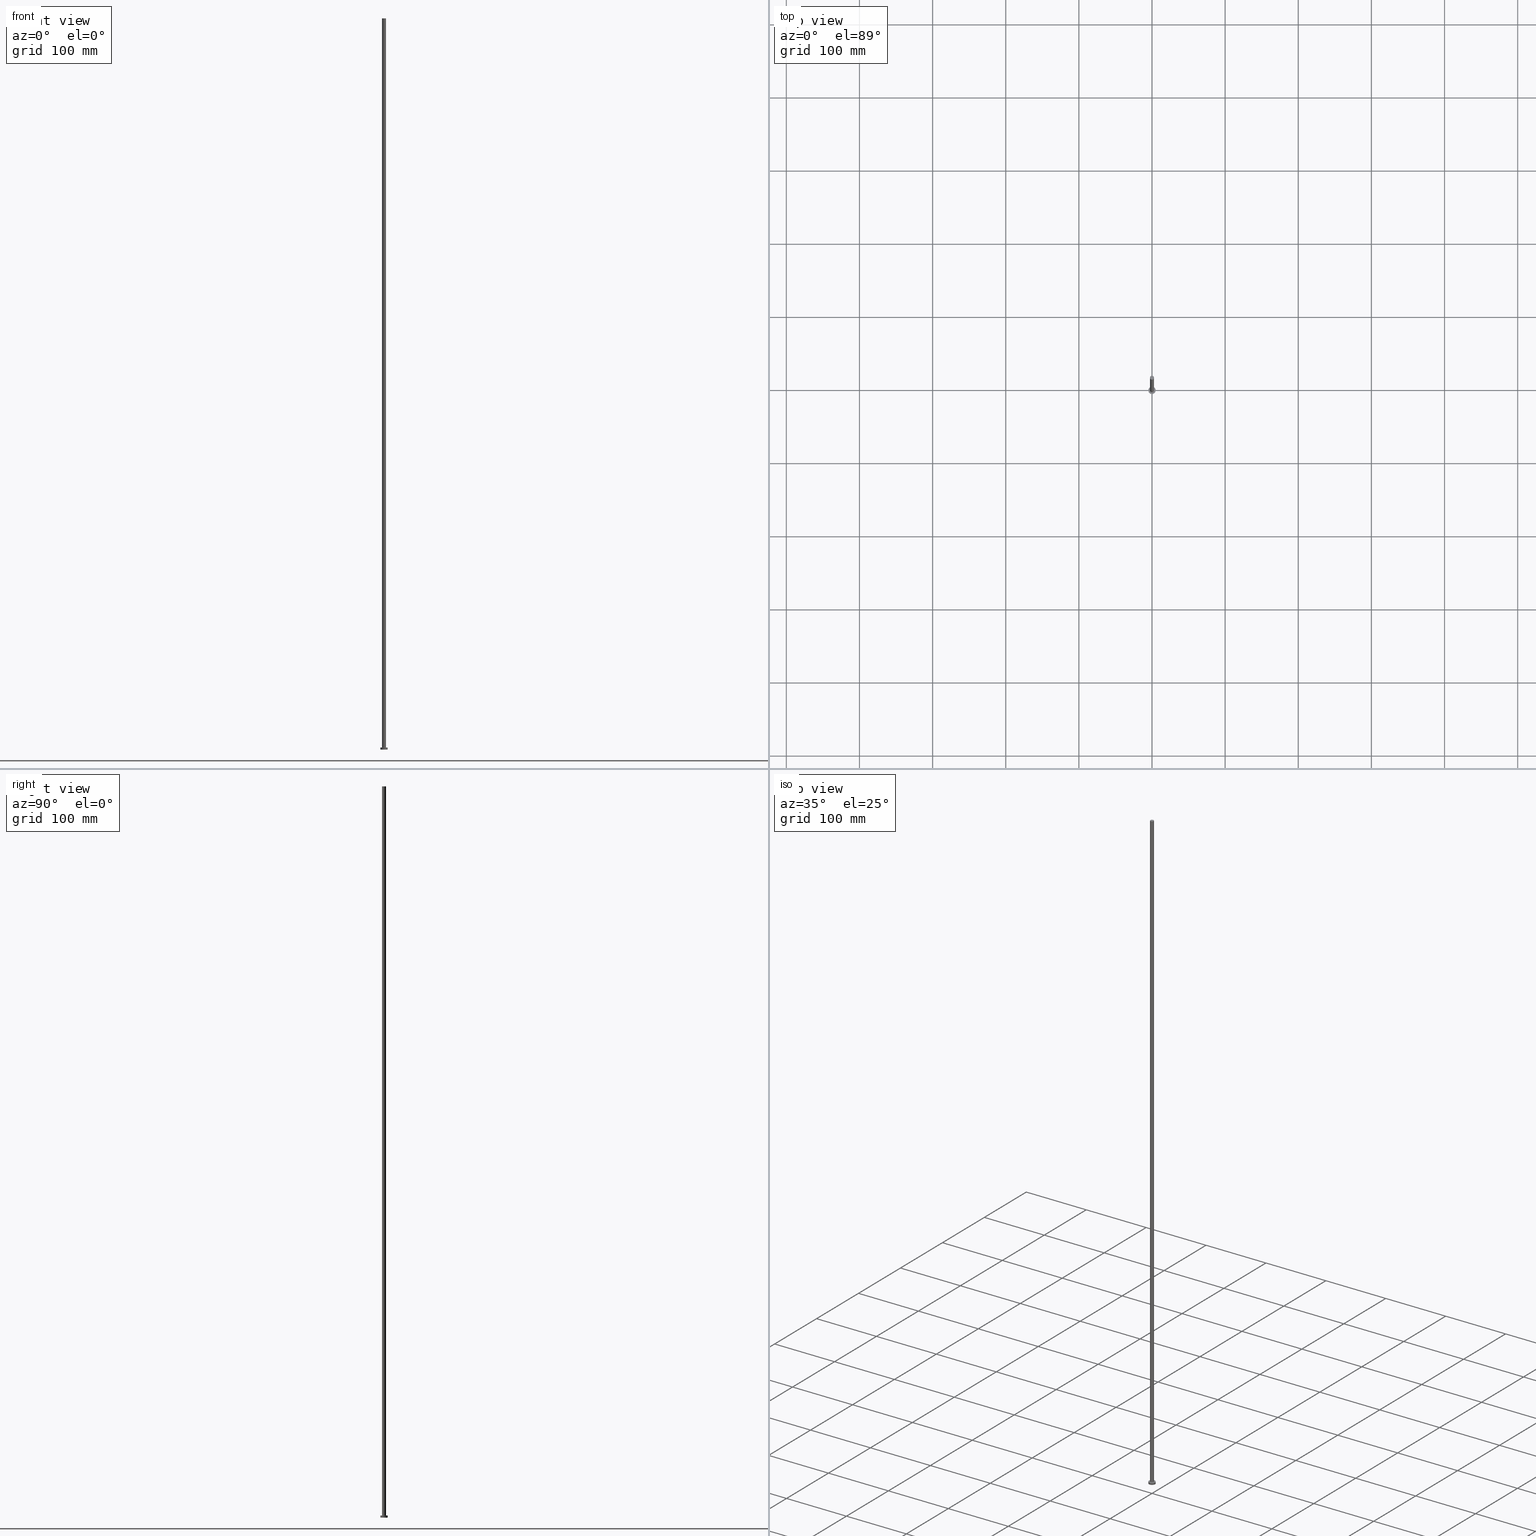
[diagram: canonical four-view strip — front | top / right | iso, engineering-drawing reading convention]
A machine part, canonical four-view strip (front | top / right | iso — engineering-drawing reading convention). The complete STEP part file that produces these views, byte-faithful:
ISO-10303-21;
HEADER;
FILE_DESCRIPTION (( 'STEP AP203' ),
    '1' );
FILE_NAME ('c2dc.STEP',
    '2023-02-12T12:20:07',
    ( '' ),
    ( '' ),
    'SwSTEP 2.0',
    'SolidWorks 2019',
    '' );
FILE_SCHEMA (( 'CONFIG_CONTROL_DESIGN' ));
ENDSEC;

DATA;
#1 = ORIENTED_EDGE ( 'NONE', *, *, #4, .F. ) ;
#2 = PERSON_AND_ORGANIZATION_ROLE ( 'design_supplier' ) ;
#3 = ORIENTED_EDGE ( 'NONE', *, *, #4, .T. ) ;
#4 = EDGE_CURVE ( 'NONE', #95, #244, #157, .T. ) ;
#5 = AXIS2_PLACEMENT_3D ( 'NONE', #247, #135, #111 ) ;
#6 = CARTESIAN_POINT ( 'NONE',  ( 0.000000000000000000, 0.000000000000000000, 1000.000000000000000 ) ) ;
#7 = DATE_AND_TIME ( #202, #87 ) ;
#8 = FACE_OUTER_BOUND ( 'NONE', #201, .T. ) ;
#9 = APPROVAL_STATUS ( 'not_yet_approved' ) ;
#10 = DIRECTION ( 'NONE',  ( -0.000000000000000000, -0.000000000000000000, -1.000000000000000000 ) ) ;
#11 = DIRECTION ( 'NONE',  ( -1.000000000000000000, 0.000000000000000000, 0.000000000000000000 ) ) ;
#12 = EDGE_LOOP ( 'NONE', ( #36, #112, #88, #170 ) ) ;
#13 = AXIS2_PLACEMENT_3D ( 'NONE', #89, #241, #224 ) ;
#14 = CARTESIAN_POINT ( 'NONE',  ( -2.750000000000000000, 0.000000000000000000, 3.000000000000000000 ) ) ;
#15 = CARTESIAN_POINT ( 'NONE',  ( -2.750000000000000000, 0.000000000000000000, 1000.000000000000000 ) ) ;
#16 = APPROVAL_DATE_TIME ( #7, #24 ) ;
#17 = ORIENTED_EDGE ( 'NONE', *, *, #253, .T. ) ;
#18 = PERSON_AND_ORGANIZATION ( #86, #183 ) ;
#19 = DIRECTION ( 'NONE',  ( -0.000000000000000000, -0.000000000000000000, -1.000000000000000000 ) ) ;
#20 = CLOSED_SHELL ( 'NONE', ( #188, #203, #47, #162, #43, #66, #238 ) ) ;
#21 = CIRCLE ( 'NONE', #126, 5.000000000000000000 ) ;
#22 = APPLICATION_PROTOCOL_DEFINITION ( 'international standard', 'config_control_design', 1994, #230 ) ;
#23 = EDGE_CURVE ( 'NONE', #244, #213, #85, .T. ) ;
#24 = APPROVAL ( #120, 'NEUR�EN�' ) ;
#25 = AXIS2_PLACEMENT_3D ( 'NONE', #215, #10, #192 ) ;
#26 = LOCAL_TIME ( 13, 20, 7.000000000000000000, #34 ) ;
#27 = UNCERTAINTY_MEASURE_WITH_UNIT (LENGTH_MEASURE( 1.000000000000000082E-05 ), #234, 'distance_accuracy_value', 'NONE');
#28 = AXIS2_PLACEMENT_3D ( 'NONE', #128, #33, #71 ) ;
#29 = AXIS2_PLACEMENT_3D ( 'NONE', #6, #69, #166 ) ;
#30 = DIRECTION ( 'NONE',  ( 0.000000000000000000, 0.000000000000000000, 1.000000000000000000 ) ) ;
#31 = EDGE_CURVE ( 'NONE', #74, #32, #94, .T. ) ;
#32 = VERTEX_POINT ( 'NONE', #233 ) ;
#33 = DIRECTION ( 'NONE',  ( 0.000000000000000000, 0.000000000000000000, 1.000000000000000000 ) ) ;
#34 = COORDINATED_UNIVERSAL_TIME_OFFSET ( 1, 0, .AHEAD. ) ;
#35 = CARTESIAN_POINT ( 'NONE',  ( -5.000000000000000000, 0.000000000000000000, 3.000000000000000000 ) ) ;
#36 = ORIENTED_EDGE ( 'NONE', *, *, #164, .F. ) ;
#37 = DIRECTION ( 'NONE',  ( -0.000000000000000000, -0.000000000000000000, -1.000000000000000000 ) ) ;
#38 = CALENDAR_DATE ( 2023, 12, 2 ) ;
#39 = CARTESIAN_POINT ( 'NONE',  ( 0.000000000000000000, 0.000000000000000000, 0.000000000000000000 ) ) ;
#40 = AXIS2_PLACEMENT_3D ( 'NONE', #255, #216, #229 ) ;
#41 = FACE_OUTER_BOUND ( 'NONE', #146, .T. ) ;
#42 = FACE_OUTER_BOUND ( 'NONE', #12, .T. ) ;
#43 = ADVANCED_FACE ( 'NONE', ( #41 ), #217, .F. ) ;
#44 = AXIS2_PLACEMENT_3D ( 'NONE', #211, #130, #154 ) ;
#45 = PRODUCT ( 'c2dc', 'c2dc', '', ( #57 ) ) ;
#46 = PRODUCT_RELATED_PRODUCT_CATEGORY ( 'detail', '', ( #45 ) ) ;
#47 = ADVANCED_FACE ( 'NONE', ( #42 ), #235, .T. ) ;
#48 = SECURITY_CLASSIFICATION ( '', '', #81 ) ;
#49 = APPROVAL ( #118, 'NEUR�EN�' ) ;
#50 = CARTESIAN_POINT ( 'NONE',  ( -5.000000000000000000, 0.000000000000000000, 3.000000000000000000 ) ) ;
#51 = EDGE_LOOP ( 'NONE', ( #1, #240, #134, #161 ) ) ;
#52 = PLANE ( 'NONE',  #28 ) ;
#53 = EDGE_LOOP ( 'NONE', ( #156, #115 ) ) ;
#54 = COORDINATED_UNIVERSAL_TIME_OFFSET ( 1, 0, .AHEAD. ) ;
#55 = FACE_BOUND ( 'NONE', #174, .T. ) ;
#56 = VERTEX_POINT ( 'NONE', #15 ) ;
#57 = MECHANICAL_CONTEXT ( 'NONE', #138, 'mechanical' ) ;
#58 = DIRECTION ( 'NONE',  ( -0.000000000000000000, -0.000000000000000000, -1.000000000000000000 ) ) ;
#59 = APPROVAL_PERSON_ORGANIZATION ( #189, #24, #200 ) ;
#60 = DATE_AND_TIME ( #198, #163 ) ;
#61 = CARTESIAN_POINT ( 'NONE',  ( 0.000000000000000000, 0.000000000000000000, 3.000000000000000000 ) ) ;
#62 = APPROVAL ( #9, 'NEUR�EN�' ) ;
#63 = EDGE_CURVE ( 'NONE', #196, #97, #237, .T. ) ;
#64 = VECTOR ( 'NONE', #133, 1000.000000000000000 ) ;
#65 = ADVANCED_BREP_SHAPE_REPRESENTATION ( 'c2dc', ( #252, #40 ), #83 ) ;
#66 = ADVANCED_FACE ( 'NONE', ( #121 ), #73, .T. ) ;
#67 = PRODUCT_DEFINITION ( 'NEZN�M�', '', #96, #84 ) ;
#68 = LINE ( 'NONE', #50, #64 ) ;
#69 = DIRECTION ( 'NONE',  ( 0.000000000000000000, 0.000000000000000000, 1.000000000000000000 ) ) ;
#70 = APPROVAL_DATE_TIME ( #242, #62 ) ;
#71 = DIRECTION ( 'NONE',  ( 1.000000000000000000, 0.000000000000000000, -0.000000000000000000 ) ) ;
#72 = AXIS2_PLACEMENT_3D ( 'NONE', #39, #204, #119 ) ;
#73 = CYLINDRICAL_SURFACE ( 'NONE', #123, 2.750000000000000000 ) ;
#74 = VERTEX_POINT ( 'NONE', #151 ) ;
#75 = DIRECTION ( 'NONE',  ( -0.000000000000000000, -0.000000000000000000, -1.000000000000000000 ) ) ;
#76 = APPROVAL_ROLE ( '' ) ;
#77 =( NAMED_UNIT ( * ) PLANE_ANGLE_UNIT ( ) SI_UNIT ( $, .RADIAN. ) );
#78 = ORIENTED_EDGE ( 'NONE', *, *, #187, .F. ) ;
#79 = PERSON_AND_ORGANIZATION ( #86, #183 ) ;
#80 = ORIENTED_EDGE ( 'NONE', *, *, #209, .F. ) ;
#81 = SECURITY_CLASSIFICATION_LEVEL ( 'unclassified' ) ;
#82 = ORIENTED_EDGE ( 'NONE', *, *, #149, .F. ) ;
#83 =( GEOMETRIC_REPRESENTATION_CONTEXT ( 3 ) GLOBAL_UNCERTAINTY_ASSIGNED_CONTEXT ( ( #27 ) ) GLOBAL_UNIT_ASSIGNED_CONTEXT ( ( #234, #77, #219 ) ) REPRESENTATION_CONTEXT ( 'NONE', 'WORKASPACE' ) );
#84 = DESIGN_CONTEXT ( 'detailed design', #230, 'design' ) ;
#85 = CIRCLE ( 'NONE', #185, 2.750000000000000000 ) ;
#86 = PERSON ( 'NEUR�EN�', 'NEUR�EN�', 'NEUR�EN�', ('NEUR�EN�'), ('NEUR�EN�'), ('NEUR�EN�') ) ;
#87 = LOCAL_TIME ( 13, 20, 7.000000000000000000, #160 ) ;
#88 = ORIENTED_EDGE ( 'NONE', *, *, #149, .T. ) ;
#89 = CARTESIAN_POINT ( 'NONE',  ( 0.000000000000000000, 0.000000000000000000, 1000.000000000000000 ) ) ;
#90 = PERSON_AND_ORGANIZATION ( #86, #183 ) ;
#91 = DIRECTION ( 'NONE',  ( -0.000000000000000000, -0.000000000000000000, -1.000000000000000000 ) ) ;
#92 = CARTESIAN_POINT ( 'NONE',  ( -2.750000000000000000, 0.000000000000000000, 1000.000000000000000 ) ) ;
#93 = COORDINATED_UNIVERSAL_TIME_OFFSET ( 1, 0, .AHEAD. ) ;
#94 = CIRCLE ( 'NONE', #172, 5.000000000000000000 ) ;
#95 = VERTEX_POINT ( 'NONE', #169 ) ;
#96 = PRODUCT_DEFINITION_FORMATION_WITH_SPECIFIED_SOURCE ( 'LIBOVOLN�', '', #45, .NOT_KNOWN. ) ;
#97 = VERTEX_POINT ( 'NONE', #171 ) ;
#98 = FACE_OUTER_BOUND ( 'NONE', #179, .T. ) ;
#99 = APPLICATION_PROTOCOL_DEFINITION ( 'international standard', 'config_control_design', 1994, #138 ) ;
#100 = DIRECTION ( 'NONE',  ( 0.000000000000000000, 0.000000000000000000, 1.000000000000000000 ) ) ;
#101 = CC_DESIGN_DATE_AND_TIME_ASSIGNMENT ( #158, #248, ( #67 ) ) ;
#102 = EDGE_LOOP ( 'NONE', ( #129, #3, #194, #80 ) ) ;
#103 = PERSON_AND_ORGANIZATION ( #86, #183 ) ;
#104 = CARTESIAN_POINT ( 'NONE',  ( 0.000000000000000000, 0.000000000000000000, 0.000000000000000000 ) ) ;
#105 = CC_DESIGN_PERSON_AND_ORGANIZATION_ASSIGNMENT ( #90, #116, ( #48 ) ) ;
#106 = CC_DESIGN_PERSON_AND_ORGANIZATION_ASSIGNMENT ( #79, #176, ( #45 ) ) ;
#107 = PRODUCT_DEFINITION_SHAPE ( 'NONE', 'NONE',  #67 ) ;
#108 = AXIS2_PLACEMENT_3D ( 'NONE', #145, #222, #113 ) ;
#109 = VECTOR ( 'NONE', #75, 1000.000000000000000 ) ;
#110 = CC_DESIGN_SECURITY_CLASSIFICATION ( #48, ( #96 ) ) ;
#111 = DIRECTION ( 'NONE',  ( 1.000000000000000000, 0.000000000000000000, 0.000000000000000000 ) ) ;
#112 = ORIENTED_EDGE ( 'NONE', *, *, #63, .F. ) ;
#113 = DIRECTION ( 'NONE',  ( 1.000000000000000000, 0.000000000000000000, 0.000000000000000000 ) ) ;
#114 = CYLINDRICAL_SURFACE ( 'NONE', #142, 5.000000000000000000 ) ;
#115 = ORIENTED_EDGE ( 'NONE', *, *, #143, .T. ) ;
#116 = PERSON_AND_ORGANIZATION_ROLE ( 'classification_officer' ) ;
#117 = FACE_OUTER_BOUND ( 'NONE', #102, .T. ) ;
#118 = APPROVAL_STATUS ( 'not_yet_approved' ) ;
#119 = DIRECTION ( 'NONE',  ( 1.000000000000000000, 0.000000000000000000, -0.000000000000000000 ) ) ;
#120 = APPROVAL_STATUS ( 'not_yet_approved' ) ;
#121 = FACE_OUTER_BOUND ( 'NONE', #51, .T. ) ;
#122 = DIRECTION ( 'NONE',  ( 0.000000000000000000, 0.000000000000000000, 1.000000000000000000 ) ) ;
#123 = AXIS2_PLACEMENT_3D ( 'NONE', #153, #228, #226 ) ;
#124 = EDGE_CURVE ( 'NONE', #95, #56, #125, .T. ) ;
#125 = CIRCLE ( 'NONE', #5, 2.750000000000000000 ) ;
#126 = AXIS2_PLACEMENT_3D ( 'NONE', #167, #30, #250 ) ;
#127 = CC_DESIGN_APPROVAL ( #49, ( #96 ) ) ;
#128 = CARTESIAN_POINT ( 'NONE',  ( 0.000000000000000000, 0.000000000000000000, 3.000000000000000000 ) ) ;
#129 = ORIENTED_EDGE ( 'NONE', *, *, #124, .F. ) ;
#130 = DIRECTION ( 'NONE',  ( 0.000000000000000000, 0.000000000000000000, 1.000000000000000000 ) ) ;
#131 = EDGE_CURVE ( 'NONE', #213, #244, #152, .T. ) ;
#132 = DATE_AND_TIME ( #214, #173 ) ;
#133 = DIRECTION ( 'NONE',  ( -0.000000000000000000, -0.000000000000000000, -1.000000000000000000 ) ) ;
#134 = ORIENTED_EDGE ( 'NONE', *, *, #209, .T. ) ;
#135 = DIRECTION ( 'NONE',  ( 0.000000000000000000, 0.000000000000000000, 1.000000000000000000 ) ) ;
#136 = DIRECTION ( 'NONE',  ( 1.000000000000000000, 0.000000000000000000, 0.000000000000000000 ) ) ;
#137 = DIRECTION ( 'NONE',  ( 1.000000000000000000, 0.000000000000000000, 0.000000000000000000 ) ) ;
#138 = APPLICATION_CONTEXT ( 'configuration controlled 3d designs of mechanical parts and assemblies' ) ;
#139 = PERSON_AND_ORGANIZATION_ROLE ( 'creator' ) ;
#140 = ORIENTED_EDGE ( 'NONE', *, *, #23, .F. ) ;
#141 = CC_DESIGN_DATE_AND_TIME_ASSIGNMENT ( #132, #191, ( #48 ) ) ;
#142 = AXIS2_PLACEMENT_3D ( 'NONE', #243, #37, #11 ) ;
#143 = EDGE_CURVE ( 'NONE', #97, #196, #221, .T. ) ;
#144 = APPROVAL_PERSON_ORGANIZATION ( #195, #62, #168 ) ;
#145 = CARTESIAN_POINT ( 'NONE',  ( 0.000000000000000000, 0.000000000000000000, 3.000000000000000000 ) ) ;
#146 = EDGE_LOOP ( 'NONE', ( #231, #78 ) ) ;
#147 = CC_DESIGN_PERSON_AND_ORGANIZATION_ASSIGNMENT ( #18, #232, ( #67 ) ) ;
#148 = CARTESIAN_POINT ( 'NONE',  ( 2.750000000000000000, 3.367778697655221012E-16, 3.000000000000000000 ) ) ;
#149 = EDGE_CURVE ( 'NONE', #196, #74, #68, .T. ) ;
#150 = SHAPE_DEFINITION_REPRESENTATION ( #107, #65 ) ;
#151 = CARTESIAN_POINT ( 'NONE',  ( -5.000000000000000000, 0.000000000000000000, 0.000000000000000000 ) ) ;
#152 = CIRCLE ( 'NONE', #44, 2.750000000000000000 ) ;
#153 = CARTESIAN_POINT ( 'NONE',  ( 0.000000000000000000, 0.000000000000000000, 1000.000000000000000 ) ) ;
#154 = DIRECTION ( 'NONE',  ( 1.000000000000000000, 0.000000000000000000, 0.000000000000000000 ) ) ;
#155 = COORDINATED_UNIVERSAL_TIME_OFFSET ( 1, 0, .AHEAD. ) ;
#156 = ORIENTED_EDGE ( 'NONE', *, *, #63, .T. ) ;
#157 = LINE ( 'NONE', #220, #206 ) ;
#158 = DATE_AND_TIME ( #38, #236 ) ;
#159 = DIRECTION ( 'NONE',  ( 0.000000000000000000, 0.000000000000000000, 1.000000000000000000 ) ) ;
#160 = COORDINATED_UNIVERSAL_TIME_OFFSET ( 1, 0, .AHEAD. ) ;
#161 = ORIENTED_EDGE ( 'NONE', *, *, #131, .T. ) ;
#162 = ADVANCED_FACE ( 'NONE', ( #55, #239 ), #52, .T. ) ;
#163 = LOCAL_TIME ( 13, 20, 7.000000000000000000, #155 ) ;
#164 = EDGE_CURVE ( 'NONE', #97, #32, #210, .T. ) ;
#165 = AXIS2_PLACEMENT_3D ( 'NONE', #61, #19, #199 ) ;
#166 = DIRECTION ( 'NONE',  ( 1.000000000000000000, 0.000000000000000000, -0.000000000000000000 ) ) ;
#167 = CARTESIAN_POINT ( 'NONE',  ( 0.000000000000000000, 0.000000000000000000, 0.000000000000000000 ) ) ;
#168 = APPROVAL_ROLE ( '' ) ;
#169 = CARTESIAN_POINT ( 'NONE',  ( 2.750000000000000000, 3.367778697655221012E-16, 1000.000000000000000 ) ) ;
#170 = ORIENTED_EDGE ( 'NONE', *, *, #31, .T. ) ;
#171 = CARTESIAN_POINT ( 'NONE',  ( 5.000000000000000000, 6.123233995736766282E-16, 3.000000000000000000 ) ) ;
#172 = AXIS2_PLACEMENT_3D ( 'NONE', #104, #159, #136 ) ;
#173 = LOCAL_TIME ( 13, 20, 7.000000000000000000, #54 ) ;
#174 = EDGE_LOOP ( 'NONE', ( #190, #140 ) ) ;
#175 = PLANE ( 'NONE',  #29 ) ;
#176 = PERSON_AND_ORGANIZATION_ROLE ( 'design_owner' ) ;
#177 = ORIENTED_EDGE ( 'NONE', *, *, #187, .T. ) ;
#178 = PERSON_AND_ORGANIZATION ( #86, #183 ) ;
#179 = EDGE_LOOP ( 'NONE', ( #17, #227 ) ) ;
#180 = APPROVAL_DATE_TIME ( #60, #49 ) ;
#181 = CC_DESIGN_PERSON_AND_ORGANIZATION_ASSIGNMENT ( #251, #139, ( #96 ) ) ;
#182 = CARTESIAN_POINT ( 'NONE',  ( 0.000000000000000000, 0.000000000000000000, 3.000000000000000000 ) ) ;
#183 = ORGANIZATION ( 'NEUR�EN�', 'NEUR�EN�', '' ) ;
#184 = CC_DESIGN_APPROVAL ( #62, ( #48 ) ) ;
#185 = AXIS2_PLACEMENT_3D ( 'NONE', #218, #122, #137 ) ;
#186 = APPROVAL_PERSON_ORGANIZATION ( #178, #49, #76 ) ;
#187 = EDGE_CURVE ( 'NONE', #32, #74, #21, .T. ) ;
#188 = ADVANCED_FACE ( 'NONE', ( #117 ), #212, .T. ) ;
#189 = PERSON_AND_ORGANIZATION ( #86, #183 ) ;
#190 = ORIENTED_EDGE ( 'NONE', *, *, #131, .F. ) ;
#191 = DATE_TIME_ROLE ( 'classification_date' ) ;
#192 = DIRECTION ( 'NONE',  ( -1.000000000000000000, 0.000000000000000000, 0.000000000000000000 ) ) ;
#193 = CARTESIAN_POINT ( 'NONE',  ( 5.000000000000000000, 6.123233995736766282E-16, 3.000000000000000000 ) ) ;
#194 = ORIENTED_EDGE ( 'NONE', *, *, #23, .T. ) ;
#195 = PERSON_AND_ORGANIZATION ( #86, #183 ) ;
#196 = VERTEX_POINT ( 'NONE', #35 ) ;
#197 = LINE ( 'NONE', #92, #109 ) ;
#198 = CALENDAR_DATE ( 2023, 12, 2 ) ;
#199 = DIRECTION ( 'NONE',  ( -1.000000000000000000, 0.000000000000000000, 0.000000000000000000 ) ) ;
#200 = APPROVAL_ROLE ( '' ) ;
#201 = EDGE_LOOP ( 'NONE', ( #249, #223, #177, #82 ) ) ;
#202 = CALENDAR_DATE ( 2023, 12, 2 ) ;
#203 = ADVANCED_FACE ( 'NONE', ( #8 ), #114, .T. ) ;
#204 = DIRECTION ( 'NONE',  ( 0.000000000000000000, 0.000000000000000000, 1.000000000000000000 ) ) ;
#205 = AXIS2_PLACEMENT_3D ( 'NONE', #182, #100, #254 ) ;
#206 = VECTOR ( 'NONE', #58, 1000.000000000000000 ) ;
#207 = CIRCLE ( 'NONE', #13, 2.750000000000000000 ) ;
#208 = CC_DESIGN_APPROVAL ( #24, ( #67 ) ) ;
#209 = EDGE_CURVE ( 'NONE', #56, #213, #197, .T. ) ;
#210 = LINE ( 'NONE', #193, #246 ) ;
#211 = CARTESIAN_POINT ( 'NONE',  ( 0.000000000000000000, 0.000000000000000000, 3.000000000000000000 ) ) ;
#212 = CYLINDRICAL_SURFACE ( 'NONE', #25, 2.750000000000000000 ) ;
#213 = VERTEX_POINT ( 'NONE', #14 ) ;
#214 = CALENDAR_DATE ( 2023, 12, 2 ) ;
#215 = CARTESIAN_POINT ( 'NONE',  ( 0.000000000000000000, 0.000000000000000000, 1000.000000000000000 ) ) ;
#216 = DIRECTION ( 'NONE',  ( 0.000000000000000000, 0.000000000000000000, 1.000000000000000000 ) ) ;
#217 = PLANE ( 'NONE',  #72 ) ;
#218 = CARTESIAN_POINT ( 'NONE',  ( 0.000000000000000000, 0.000000000000000000, 3.000000000000000000 ) ) ;
#219 =( NAMED_UNIT ( * ) SI_UNIT ( $, .STERADIAN. ) SOLID_ANGLE_UNIT ( ) );
#220 = CARTESIAN_POINT ( 'NONE',  ( 2.750000000000000000, 3.367778697655221012E-16, 1000.000000000000000 ) ) ;
#221 = CIRCLE ( 'NONE', #108, 5.000000000000000000 ) ;
#222 = DIRECTION ( 'NONE',  ( 0.000000000000000000, 0.000000000000000000, 1.000000000000000000 ) ) ;
#223 = ORIENTED_EDGE ( 'NONE', *, *, #164, .T. ) ;
#224 = DIRECTION ( 'NONE',  ( 1.000000000000000000, 0.000000000000000000, 0.000000000000000000 ) ) ;
#225 = CC_DESIGN_PERSON_AND_ORGANIZATION_ASSIGNMENT ( #103, #2, ( #96 ) ) ;
#226 = DIRECTION ( 'NONE',  ( -1.000000000000000000, 0.000000000000000000, 0.000000000000000000 ) ) ;
#227 = ORIENTED_EDGE ( 'NONE', *, *, #124, .T. ) ;
#228 = DIRECTION ( 'NONE',  ( -0.000000000000000000, -0.000000000000000000, -1.000000000000000000 ) ) ;
#229 = DIRECTION ( 'NONE',  ( 1.000000000000000000, 0.000000000000000000, 0.000000000000000000 ) ) ;
#230 = APPLICATION_CONTEXT ( 'configuration controlled 3d designs of mechanical parts and assemblies' ) ;
#231 = ORIENTED_EDGE ( 'NONE', *, *, #31, .F. ) ;
#232 = PERSON_AND_ORGANIZATION_ROLE ( 'creator' ) ;
#233 = CARTESIAN_POINT ( 'NONE',  ( 5.000000000000000000, 6.123233995736766282E-16, 0.000000000000000000 ) ) ;
#234 =( LENGTH_UNIT ( ) NAMED_UNIT ( * ) SI_UNIT ( .MILLI., .METRE. ) );
#235 = CYLINDRICAL_SURFACE ( 'NONE', #165, 5.000000000000000000 ) ;
#236 = LOCAL_TIME ( 13, 20, 7.000000000000000000, #93 ) ;
#237 = CIRCLE ( 'NONE', #205, 5.000000000000000000 ) ;
#238 = ADVANCED_FACE ( 'NONE', ( #98 ), #175, .T. ) ;
#239 = FACE_OUTER_BOUND ( 'NONE', #53, .T. ) ;
#240 = ORIENTED_EDGE ( 'NONE', *, *, #253, .F. ) ;
#241 = DIRECTION ( 'NONE',  ( 0.000000000000000000, 0.000000000000000000, 1.000000000000000000 ) ) ;
#242 = DATE_AND_TIME ( #245, #26 ) ;
#243 = CARTESIAN_POINT ( 'NONE',  ( 0.000000000000000000, 0.000000000000000000, 3.000000000000000000 ) ) ;
#244 = VERTEX_POINT ( 'NONE', #148 ) ;
#245 = CALENDAR_DATE ( 2023, 12, 2 ) ;
#246 = VECTOR ( 'NONE', #91, 1000.000000000000000 ) ;
#247 = CARTESIAN_POINT ( 'NONE',  ( 0.000000000000000000, 0.000000000000000000, 1000.000000000000000 ) ) ;
#248 = DATE_TIME_ROLE ( 'creation_date' ) ;
#249 = ORIENTED_EDGE ( 'NONE', *, *, #143, .F. ) ;
#250 = DIRECTION ( 'NONE',  ( 1.000000000000000000, 0.000000000000000000, 0.000000000000000000 ) ) ;
#251 = PERSON_AND_ORGANIZATION ( #86, #183 ) ;
#252 = MANIFOLD_SOLID_BREP ( 'P�idat vysunut�m3', #20 ) ;
#253 = EDGE_CURVE ( 'NONE', #56, #95, #207, .T. ) ;
#254 = DIRECTION ( 'NONE',  ( 1.000000000000000000, 0.000000000000000000, 0.000000000000000000 ) ) ;
#255 = CARTESIAN_POINT ( 'NONE',  ( 0.000000000000000000, 0.000000000000000000, 0.000000000000000000 ) ) ;
ENDSEC;
END-ISO-10303-21;
